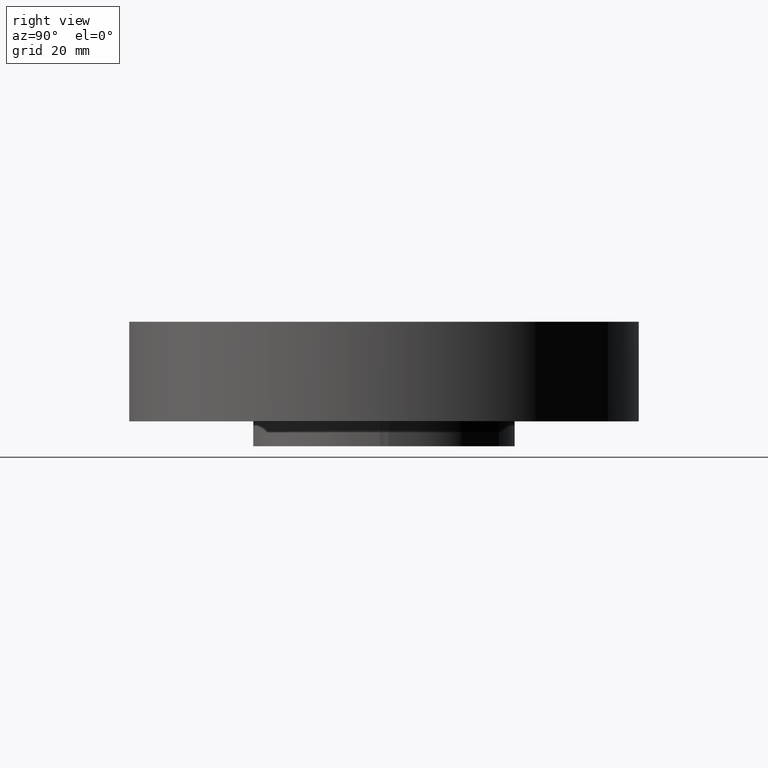
[diagram: clean part render]
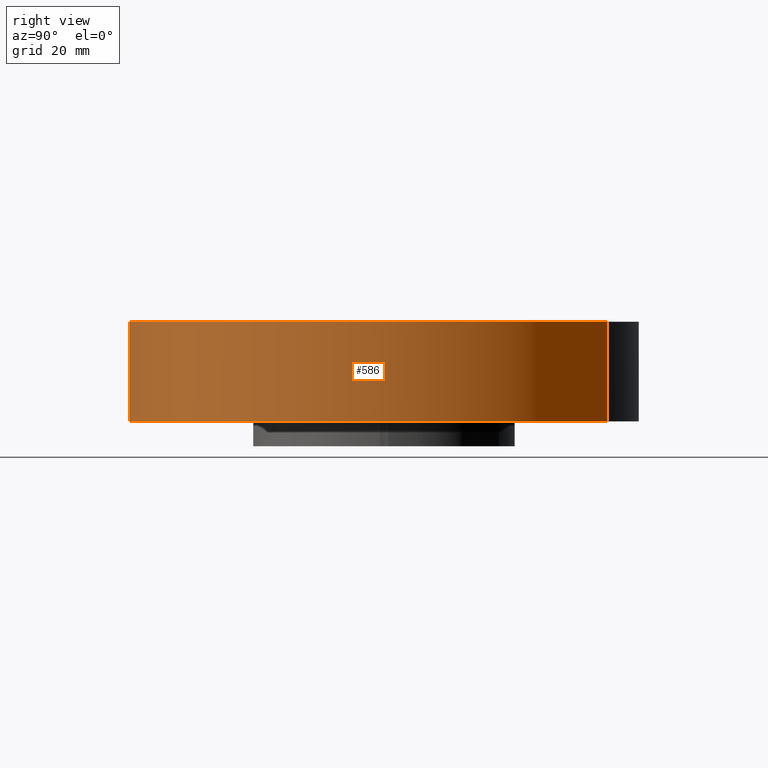
[diagram: same view with one face highlighted and labeled with its STEP entity id]
A machine part, right view. The second image highlights one B-rep face of the part: STEP entity #586.
In plain terms, the highlighted cylindrical surface (partial cylindrical patch) has radius 65.024 mm, axis along (0, 0, -1).
Its self-contained STEP definition (entity closure, byte-faithful):
#416=AXIS2_PLACEMENT_3D('Circle Axis2P3D',#414,#415,$) ;
#559=AXIS2_PLACEMENT_3D('Cylinder Axis2P3D',#556,#557,#558) ;
#570=AXIS2_PLACEMENT_3D('Circle Axis2P3D',#568,#569,$) ;
#409=CARTESIAN_POINT('Vertex',(-1.22732937883,-2.24661135845,6.99353086378E-017)) ;
#411=CARTESIAN_POINT('Vertex',(1.22732937883,2.24661135845,6.99353086378E-017)) ;
#414=CARTESIAN_POINT('Axis2P3D Location',(0.,0.,0.)) ;
#556=CARTESIAN_POINT('Axis2P3D Location',(0.,0.,0.375000000002)) ;
#561=CARTESIAN_POINT('Line Origine',(1.22732937883,2.24661135845,0.500000000002)) ;
#565=CARTESIAN_POINT('Vertex',(1.22732937883,2.24661135845,1.)) ;
#568=CARTESIAN_POINT('Axis2P3D Location',(0.,0.,1.)) ;
#572=CARTESIAN_POINT('Vertex',(-1.22732937883,-2.24661135845,1.)) ;
#575=CARTESIAN_POINT('Line Origine',(-1.22732937883,-2.24661135845,0.500000000002)) ;
#415=DIRECTION('Axis2P3D Direction',(0.,0.,-0.0393700787402)) ;
#557=DIRECTION('Axis2P3D Direction',(0.,0.,-0.0393700787402)) ;
#558=DIRECTION('Axis2P3D XDirection',(-0.0188750212049,-0.0345504945626,0.)) ;
#562=DIRECTION('Vector Direction',(0.,0.,-0.0393700787402)) ;
#569=DIRECTION('Axis2P3D Direction',(0.,0.,-0.0393700787402)) ;
#576=DIRECTION('Vector Direction',(0.,0.,-0.0393700787402)) ;
#563=VECTOR('Line Direction',#562,0.0393700787402) ;
#577=VECTOR('Line Direction',#576,0.0393700787402) ;
#581=ORIENTED_EDGE('',*,*,#418,.F.) ;
#582=ORIENTED_EDGE('',*,*,#567,.T.) ;
#583=ORIENTED_EDGE('',*,*,#574,.T.) ;
#584=ORIENTED_EDGE('',*,*,#579,.F.) ;
#586=ADVANCED_FACE('PartBody',(#585),#560,.T.) ;
#417=CIRCLE('generated circle',#416,2.56000000001) ;
#571=CIRCLE('generated circle',#570,2.56000000001) ;
#560=CYLINDRICAL_SURFACE('generated cylinder',#559,2.56000000001) ;
#418=EDGE_CURVE('',#412,#410,#417,.T.) ;
#567=EDGE_CURVE('',#412,#566,#564,.F.) ;
#574=EDGE_CURVE('',#566,#573,#571,.T.) ;
#579=EDGE_CURVE('',#410,#573,#578,.F.) ;
#580=EDGE_LOOP('',(#581,#582,#583,#584)) ;
#585=FACE_OUTER_BOUND('',#580,.T.) ;
#564=LINE('Line',#561,#563) ;
#578=LINE('Line',#575,#577) ;
#410=VERTEX_POINT('',#409) ;
#412=VERTEX_POINT('',#411) ;
#566=VERTEX_POINT('',#565) ;
#573=VERTEX_POINT('',#572) ;